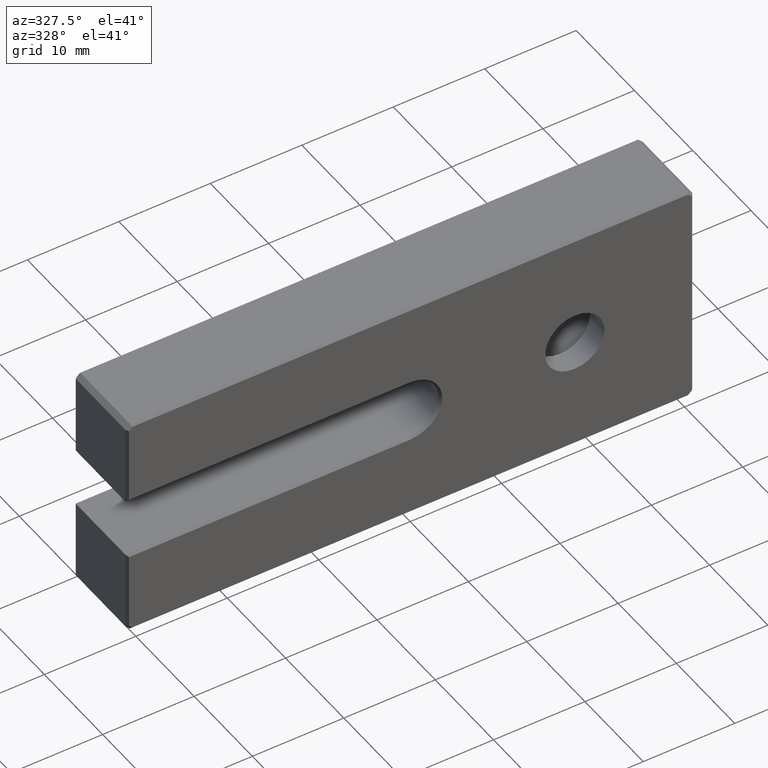
[diagram: clean part render]
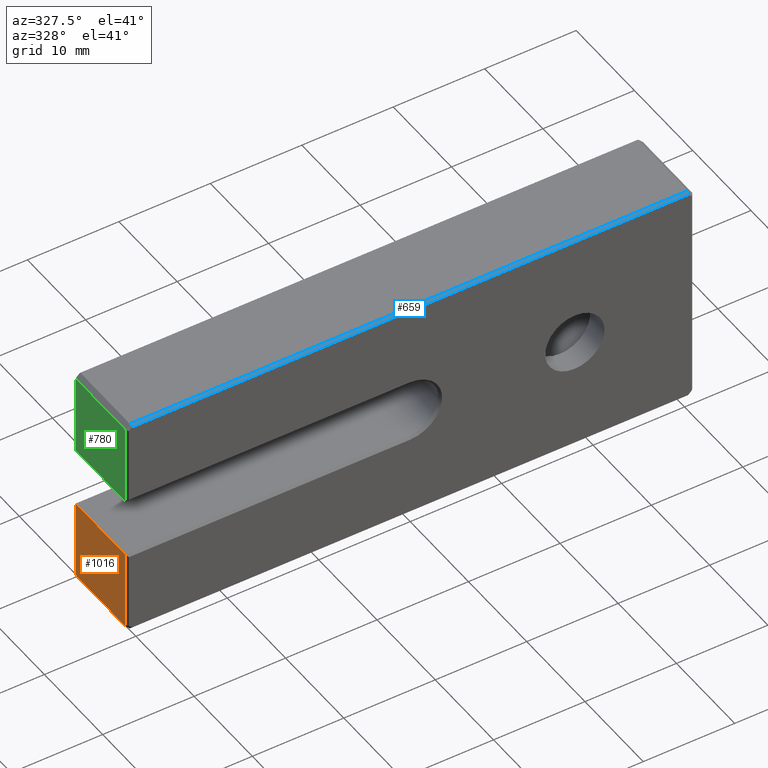
[diagram: same view with three faces highlighted in distinct colors, each labeled with its STEP entity id]
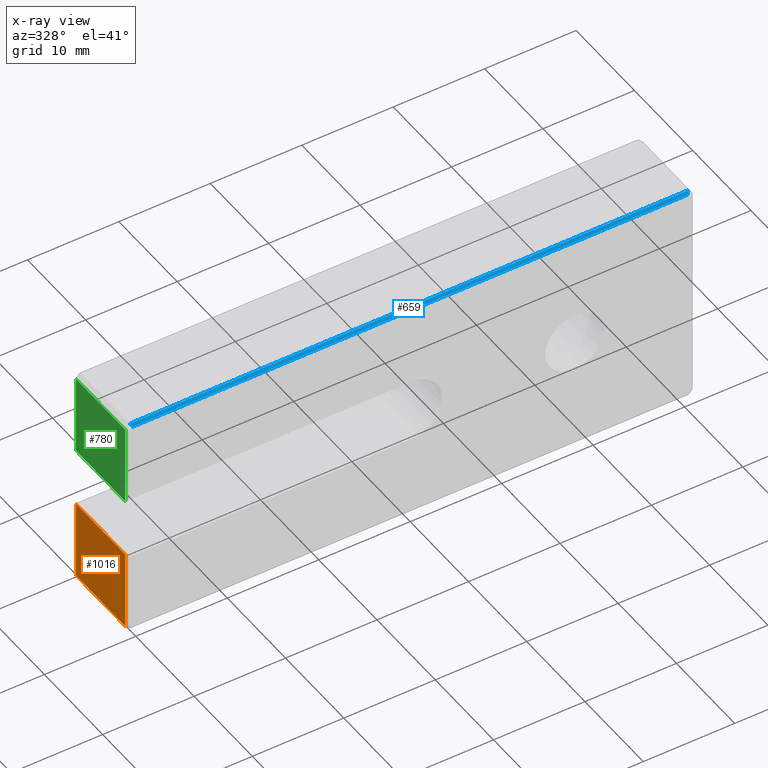
[diagram: x-ray of the same camera — body ghosted, the three highlighted faces saturated]
A machine part, auxiliary view with three faces highlighted in distinct colors.
The next image is the same camera in x-ray (body ghosted, the three faces saturated) — at least one of them is partly hidden behind the body in this view.
Their STEP definitions:

[orange] entity #1016 — the highlighted planar face has unit normal (1, 0, -0).
#37 = EDGE_CURVE ( 'NONE', #115, #160, #564, .T. ) ;
#44 = EDGE_CURVE ( 'NONE', #348, #115, #1022, .T. ) ;
#50 = DIRECTION ( 'NONE',  ( 1.000000000000000000, 0.000000000000000000, -1.387778780781445676E-16 ) ) ;
#55 = DIRECTION ( 'NONE',  ( 0.000000000000000000, -1.000000000000000000, 0.000000000000000000 ) ) ;
#57 = ORIENTED_EDGE ( 'NONE', *, *, #37, .T. ) ;
#79 = EDGE_LOOP ( 'NONE', ( #198, #216, #57, #1112 ) ) ;
#115 = VERTEX_POINT ( 'NONE', #1147 ) ;
#146 = PLANE ( 'NONE',  #202 ) ;
#154 = CARTESIAN_POINT ( 'NONE',  ( -31.00000000000000711, 8.749999999999998224, -12.00000000000000533 ) ) ;
#160 = VERTEX_POINT ( 'NONE', #1059 ) ;
#198 = ORIENTED_EDGE ( 'NONE', *, *, #520, .T. ) ;
#202 = AXIS2_PLACEMENT_3D ( 'NONE', #771, #50, #1145 ) ;
#213 = DIRECTION ( 'NONE',  ( 0.000000000000000000, 1.000000000000000000, 0.000000000000000000 ) ) ;
#215 = VECTOR ( 'NONE', #213, 1000.000000000000000 ) ;
#216 = ORIENTED_EDGE ( 'NONE', *, *, #44, .T. ) ;
#348 = VERTEX_POINT ( 'NONE', #854 ) ;
#359 = CARTESIAN_POINT ( 'NONE',  ( -31.00000000000000711, 8.749999999999998224, -12.00000000000000533 ) ) ;
#417 = VECTOR ( 'NONE', #796, 1000.000000000000000 ) ;
#506 = VERTEX_POINT ( 'NONE', #154 ) ;
#520 = EDGE_CURVE ( 'NONE', #506, #348, #858, .T. ) ;
#558 = CARTESIAN_POINT ( 'NONE',  ( -31.00000000000000711, 9.000000000000000000, -3.249999999999997780 ) ) ;
#564 = LINE ( 'NONE', #558, #215 ) ;
#586 = VECTOR ( 'NONE', #922, 1000.000000000000000 ) ;
#706 = LINE ( 'NONE', #359, #417 ) ;
#771 = CARTESIAN_POINT ( 'NONE',  ( -31.00000000000000711, 9.000000000000000000, -12.49999999999999822 ) ) ;
#796 = DIRECTION ( 'NONE',  ( -1.387778780781445676E-16, 0.000000000000000000, -1.000000000000000000 ) ) ;
#854 = CARTESIAN_POINT ( 'NONE',  ( -31.00000000000000711, 0.2499999999999932832, -12.00000000000000533 ) ) ;
#858 = LINE ( 'NONE', #1136, #1155 ) ;
#865 = FACE_OUTER_BOUND ( 'NONE', #79, .T. ) ;
#922 = DIRECTION ( 'NONE',  ( 1.387778780781445676E-16, 0.000000000000000000, 1.000000000000000000 ) ) ;
#1016 = ADVANCED_FACE ( 'NONE', ( #865 ), #146, .F. ) ;
#1017 = CARTESIAN_POINT ( 'NONE',  ( -31.00000000000000711, 0.2499999999999932832, -12.49999999999999822 ) ) ;
#1022 = LINE ( 'NONE', #1017, #586 ) ;
#1059 = CARTESIAN_POINT ( 'NONE',  ( -31.00000000000000711, 8.749999999999998224, -3.249999999999997780 ) ) ;
#1112 = ORIENTED_EDGE ( 'NONE', *, *, #1130, .T. ) ;
#1130 = EDGE_CURVE ( 'NONE', #160, #506, #706, .T. ) ;
#1136 = CARTESIAN_POINT ( 'NONE',  ( -31.00000000000000711, 9.000000000000000000, -12.00000000000000533 ) ) ;
#1145 = DIRECTION ( 'NONE',  ( -1.387778780781445676E-16, 0.000000000000000000, -1.000000000000000000 ) ) ;
#1147 = CARTESIAN_POINT ( 'NONE',  ( -31.00000000000000711, 0.2499999999999932832, -3.249999999999997780 ) ) ;
#1155 = VECTOR ( 'NONE', #55, 1000.000000000000000 ) ;

[blue] entity #659 — the highlighted planar face has unit normal (0, 0.7071, -0.7071).
#3 = DIRECTION ( 'NONE',  ( 0.2810846377148214503, -0.6785983445458373398, -0.6785983445458561025 ) ) ;
#6 = DIRECTION ( 'NONE',  ( 1.000000000000000000, 0.000000000000000000, 0.000000000000000000 ) ) ;
#30 = EDGE_CURVE ( 'NONE', #111, #762, #636, .T. ) ;
#80 = PLANE ( 'NONE',  #799 ) ;
#111 = VERTEX_POINT ( 'NONE', #119 ) ;
#119 = CARTESIAN_POINT ( 'NONE',  ( -30.49999999999999645, 0.2499999999999932832, 12.50000000000000178 ) ) ;
#153 = ORIENTED_EDGE ( 'NONE', *, *, #205, .F. ) ;
#162 = EDGE_CURVE ( 'NONE', #449, #972, #596, .T. ) ;
#205 = EDGE_CURVE ( 'NONE', #972, #762, #817, .T. ) ;
#246 = CARTESIAN_POINT ( 'NONE',  ( 30.39644660940671628, 0.000000000000000000, 12.25000000000000178 ) ) ;
#316 = VECTOR ( 'NONE', #6, 1000.000000000000000 ) ;
#344 = LINE ( 'NONE', #538, #316 ) ;
#346 = CARTESIAN_POINT ( 'NONE',  ( 31.41024318152621575, 2.447521433898090404, 14.69752143389816190 ) ) ;
#371 = CARTESIAN_POINT ( 'NONE',  ( -30.53950428677963203, 0.3453717849152668773, 12.59537178491527776 ) ) ;
#384 = ORIENTED_EDGE ( 'NONE', *, *, #30, .T. ) ;
#437 = CARTESIAN_POINT ( 'NONE',  ( -30.39644660940672338, 0.000000000000000000, 12.25000000000000178 ) ) ;
#449 = VERTEX_POINT ( 'NONE', #578 ) ;
#457 = VECTOR ( 'NONE', #3, 1000.000000000000114 ) ;
#463 = DIRECTION ( 'NONE',  ( 0.000000000000000000, 0.7071067811865573427, -0.7071067811865378028 ) ) ;
#518 = EDGE_LOOP ( 'NONE', ( #384, #153, #956, #527 ) ) ;
#527 = ORIENTED_EDGE ( 'NONE', *, *, #679, .F. ) ;
#538 = CARTESIAN_POINT ( 'NONE',  ( -31.00000000000000355, 0.2499999999999932832, 12.50000000000000178 ) ) ;
#578 = CARTESIAN_POINT ( 'NONE',  ( 30.49999999999999645, 0.2499999999999932832, 12.50000000000000178 ) ) ;
#596 = LINE ( 'NONE', #346, #665 ) ;
#612 = CARTESIAN_POINT ( 'NONE',  ( -31.00000000000000355, 0.2499999999999932832, 12.50000000000000178 ) ) ;
#636 = LINE ( 'NONE', #371, #457 ) ;
#659 = ADVANCED_FACE ( 'NONE', ( #892 ), #80, .F. ) ;
#665 = VECTOR ( 'NONE', #1132, 1000.000000000000114 ) ;
#679 = EDGE_CURVE ( 'NONE', #111, #449, #344, .T. ) ;
#723 = DIRECTION ( 'NONE',  ( 1.000000000000000000, -0.000000000000000000, 0.000000000000000000 ) ) ;
#729 = CARTESIAN_POINT ( 'NONE',  ( 0.000000000000000000, 0.000000000000000000, 12.25000000000000178 ) ) ;
#762 = VERTEX_POINT ( 'NONE', #437 ) ;
#799 = AXIS2_PLACEMENT_3D ( 'NONE', #612, #463, #723 ) ;
#817 = LINE ( 'NONE', #729, #1045 ) ;
#892 = FACE_OUTER_BOUND ( 'NONE', #518, .T. ) ;
#956 = ORIENTED_EDGE ( 'NONE', *, *, #162, .F. ) ;
#972 = VERTEX_POINT ( 'NONE', #246 ) ;
#1045 = VECTOR ( 'NONE', #1169, 1000.000000000000000 ) ;
#1132 = DIRECTION ( 'NONE',  ( -0.2810846377148337183, -0.6785983445458348973, -0.6785983445458536600 ) ) ;
#1169 = DIRECTION ( 'NONE',  ( -1.000000000000000000, 0.000000000000000000, 0.000000000000000000 ) ) ;

[green] entity #780 — the highlighted planar face has unit normal (1, 0, -0).
#17 = CARTESIAN_POINT ( 'NONE',  ( -31.00000000000000711, 9.000000000000000000, -12.49999999999999822 ) ) ;
#126 = LINE ( 'NONE', #293, #372 ) ;
#134 = VECTOR ( 'NONE', #1159, 1000.000000000000000 ) ;
#151 = VERTEX_POINT ( 'NONE', #792 ) ;
#221 = CARTESIAN_POINT ( 'NONE',  ( -31.00000000000000355, 0.2499999999999932832, 3.250000000000004441 ) ) ;
#229 = CARTESIAN_POINT ( 'NONE',  ( -31.00000000000000711, 0.2499999999999932832, -12.49999999999999822 ) ) ;
#259 = VECTOR ( 'NONE', #1040, 1000.000000000000000 ) ;
#293 = CARTESIAN_POINT ( 'NONE',  ( -31.00000000000000355, 9.000000000000000000, 12.00000000000000178 ) ) ;
#372 = VECTOR ( 'NONE', #482, 1000.000000000000000 ) ;
#388 = PLANE ( 'NONE',  #1109 ) ;
#431 = CARTESIAN_POINT ( 'NONE',  ( -31.00000000000000355, 0.2499999999999932832, 12.00000000000000178 ) ) ;
#450 = LINE ( 'NONE', #1173, #134 ) ;
#482 = DIRECTION ( 'NONE',  ( 0.000000000000000000, 1.000000000000000000, 0.000000000000000000 ) ) ;
#523 = CARTESIAN_POINT ( 'NONE',  ( -31.00000000000000355, 9.000000000000000000, 3.250000000000004441 ) ) ;
#562 = DIRECTION ( 'NONE',  ( -1.387778780781445676E-16, 0.000000000000000000, -1.000000000000000000 ) ) ;
#580 = ORIENTED_EDGE ( 'NONE', *, *, #1168, .T. ) ;
#597 = VERTEX_POINT ( 'NONE', #431 ) ;
#633 = EDGE_CURVE ( 'NONE', #151, #997, #450, .T. ) ;
#735 = VECTOR ( 'NONE', #979, 1000.000000000000000 ) ;
#780 = ADVANCED_FACE ( 'NONE', ( #1025 ), #388, .F. ) ;
#792 = CARTESIAN_POINT ( 'NONE',  ( -31.00000000000000355, 8.749999999999998224, 12.00000000000000178 ) ) ;
#806 = EDGE_LOOP ( 'NONE', ( #580, #1071, #1062, #984 ) ) ;
#829 = DIRECTION ( 'NONE',  ( 1.000000000000000000, 0.000000000000000000, -1.387778780781445676E-16 ) ) ;
#849 = VERTEX_POINT ( 'NONE', #221 ) ;
#881 = EDGE_CURVE ( 'NONE', #597, #151, #126, .T. ) ;
#961 = CARTESIAN_POINT ( 'NONE',  ( -31.00000000000000355, 8.749999999999998224, 3.250000000000004441 ) ) ;
#973 = LINE ( 'NONE', #523, #735 ) ;
#976 = EDGE_CURVE ( 'NONE', #849, #597, #1129, .T. ) ;
#979 = DIRECTION ( 'NONE',  ( 0.000000000000000000, -1.000000000000000000, 0.000000000000000000 ) ) ;
#984 = ORIENTED_EDGE ( 'NONE', *, *, #633, .T. ) ;
#997 = VERTEX_POINT ( 'NONE', #961 ) ;
#1025 = FACE_OUTER_BOUND ( 'NONE', #806, .T. ) ;
#1040 = DIRECTION ( 'NONE',  ( 1.387778780781445676E-16, 0.000000000000000000, 1.000000000000000000 ) ) ;
#1062 = ORIENTED_EDGE ( 'NONE', *, *, #881, .T. ) ;
#1071 = ORIENTED_EDGE ( 'NONE', *, *, #976, .T. ) ;
#1109 = AXIS2_PLACEMENT_3D ( 'NONE', #17, #829, #562 ) ;
#1129 = LINE ( 'NONE', #229, #259 ) ;
#1159 = DIRECTION ( 'NONE',  ( -1.387778780781445676E-16, 0.000000000000000000, -1.000000000000000000 ) ) ;
#1168 = EDGE_CURVE ( 'NONE', #997, #849, #973, .T. ) ;
#1173 = CARTESIAN_POINT ( 'NONE',  ( -31.00000000000000355, 8.749999999999998224, 3.250000000000001776 ) ) ;